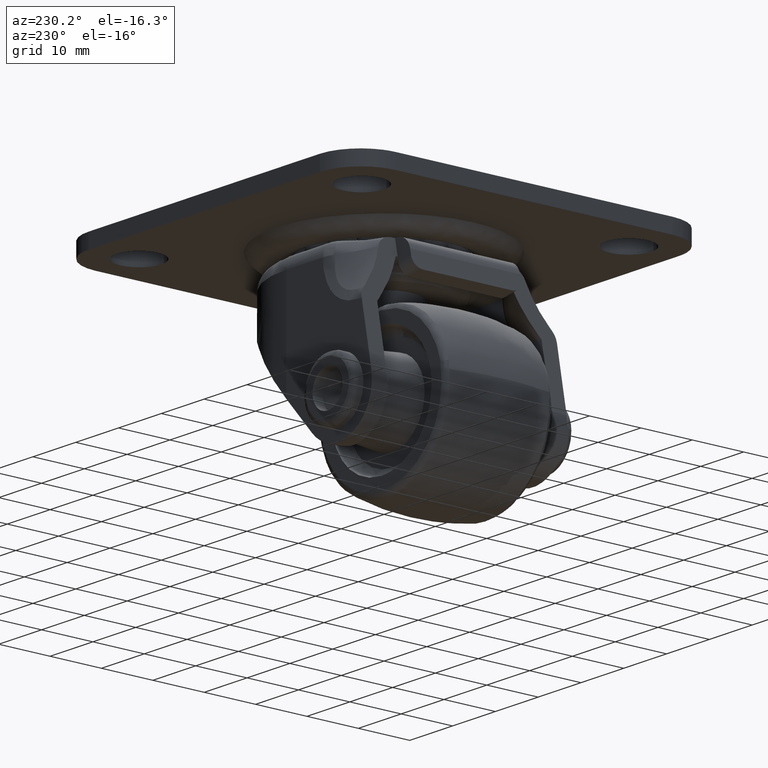
[diagram: clean part render]
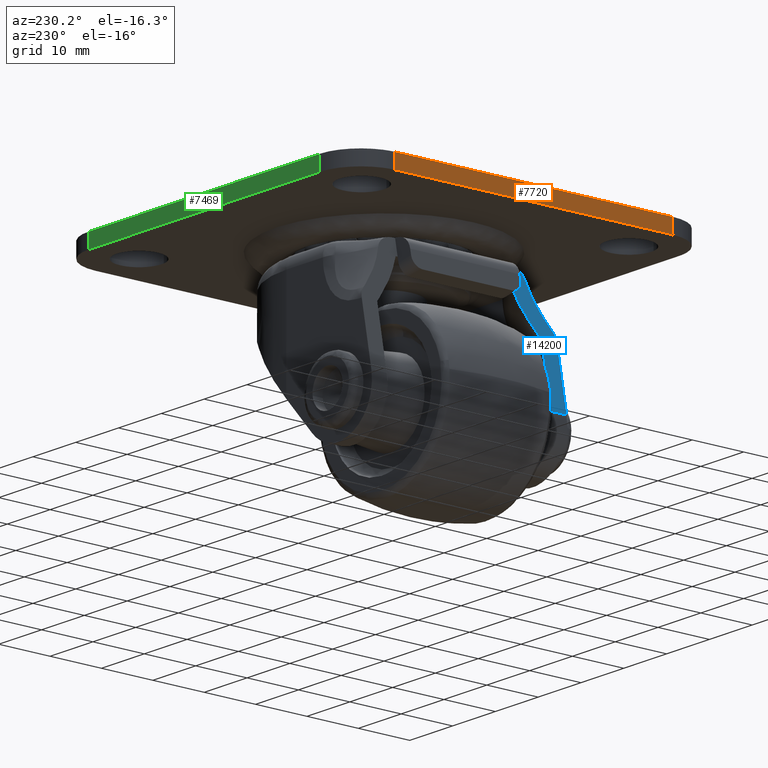
[diagram: same view with three faces highlighted in distinct colors, each labeled with its STEP entity id]
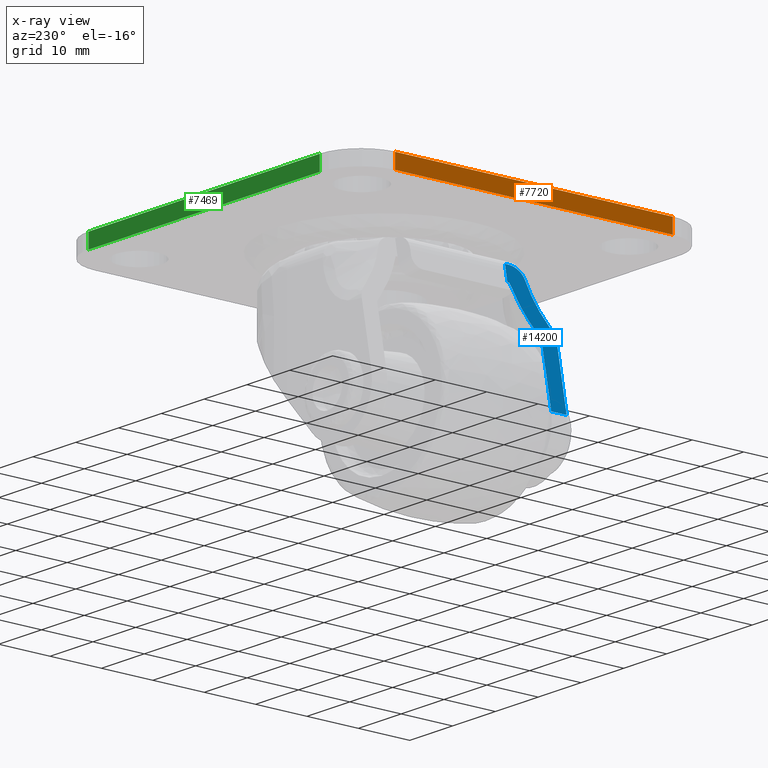
[diagram: x-ray of the same camera — body ghosted, the three highlighted faces saturated]
A machine part, auxiliary view with three faces highlighted in distinct colors.
The next image is the same camera in x-ray (body ghosted, the three faces saturated) — at least one of them is partly hidden behind the body in this view.
Their STEP definitions:

[orange] entity #7720 — the highlighted face is a freeform B-spline surface patch.
#7654=CARTESIAN_POINT('',(-23.0,-27.0,30.500000000000000));
#7655=VERTEX_POINT('',#7654);
#7669=CARTESIAN_POINT('',(-23.0,-27.0,27.699999999999999));
#7670=VERTEX_POINT('',#7669);
#7671=CARTESIAN_POINT('',(-23.0,-27.0,27.699999999999999));
#7672=CARTESIAN_POINT('',(-23.0,-27.0,30.500000000000000));
#7673=QUASI_UNIFORM_CURVE('',1,(#7671,#7672),.UNSPECIFIED.,.F.,.U.);
#7674=EDGE_CURVE('',#7670,#7655,#7673,.T.);
#7693=CARTESIAN_POINT('',(-23.0,29.697296202450641,27.560140793958841));
#7694=CARTESIAN_POINT('',(-23.0,-29.697301168046032,27.560140793958841));
#7695=CARTESIAN_POINT('',(-23.0,29.697296202450641,30.639860032161540));
#7696=CARTESIAN_POINT('',(-23.0,-29.697301168046032,30.639860032161540));
#7697=B_SPLINE_SURFACE_WITH_KNOTS('',1,1,((#7693,#7695),(#7694,#7696)),.UNSPECIFIED.,.F.,.F.,.U.,(2,2),(2,2),(0.0,59.394597370496669),(0.0,3.079719238202699),.UNSPECIFIED.);
#7698=CARTESIAN_POINT('',(-23.0,26.999995999999800,30.500000000000000));
#7699=VERTEX_POINT('',#7698);
#7700=CARTESIAN_POINT('',(-23.0,26.999995999999800,30.500000000000000));
#7701=CARTESIAN_POINT('',(-23.0,-27.0,30.500000000000000));
#7702=QUASI_UNIFORM_CURVE('',1,(#7700,#7701),.UNSPECIFIED.,.F.,.U.);
#7703=EDGE_CURVE('',#7699,#7655,#7702,.T.);
#7704=ORIENTED_EDGE('',*,*,#7703,.F.);
#7705=CARTESIAN_POINT('',(-23.0,26.999995999999800,27.699999999999999));
#7706=VERTEX_POINT('',#7705);
#7707=CARTESIAN_POINT('',(-23.0,26.999995999999800,27.699999999999999));
#7708=CARTESIAN_POINT('',(-23.0,26.999995999999800,30.500000000000000));
#7709=QUASI_UNIFORM_CURVE('',1,(#7707,#7708),.UNSPECIFIED.,.F.,.U.);
#7710=EDGE_CURVE('',#7706,#7699,#7709,.T.);
#7711=ORIENTED_EDGE('',*,*,#7710,.F.);
#7712=CARTESIAN_POINT('',(-23.0,26.999995999999800,27.699999999999999));
#7713=CARTESIAN_POINT('',(-23.0,-27.0,27.699999999999999));
#7714=QUASI_UNIFORM_CURVE('',1,(#7712,#7713),.UNSPECIFIED.,.F.,.U.);
#7715=EDGE_CURVE('',#7706,#7670,#7714,.T.);
#7716=ORIENTED_EDGE('',*,*,#7715,.T.);
#7717=ORIENTED_EDGE('',*,*,#7674,.T.);
#7718=EDGE_LOOP('',(#7704,#7711,#7716,#7717));
#7719=FACE_OUTER_BOUND('',#7718,.T.);
#7720=ADVANCED_FACE('',(#7719),#7697,.T.);

[blue] entity #14200 — the highlighted face is a freeform B-spline surface patch.
#12679=CARTESIAN_POINT('',(-5.599198789073601,-19.0,13.209993890227500));
#12680=VERTEX_POINT('',#12679);
#12681=CARTESIAN_POINT('',(-5.233937407877630,-18.326972265238901,15.103456347422950));
#12682=VERTEX_POINT('',#12681);
#12683=CARTESIAN_POINT('',(-5.599198789073601,-19.0,13.209993890227500));
#12684=CARTESIAN_POINT('',(-5.393493924420603,-19.000000027521889,14.276338317901571));
#12685=CARTESIAN_POINT('',(-5.233937407877630,-18.326972265238901,15.103456347422950));
#12693=(BOUNDED_CURVE()B_SPLINE_CURVE(2,(#12683,#12684,#12685),.UNSPECIFIED.,.F.,.U.)CURVE()GEOMETRIC_REPRESENTATION_ITEM()QUASI_UNIFORM_CURVE()RATIONAL_B_SPLINE_CURVE((1.0,0.942246625214576,1.0))REPRESENTATION_ITEM(''));
#12694=EDGE_CURVE('',#12680,#12682,#12693,.T.);
#13078=CARTESIAN_POINT('',(-3.820826882663010,-14.315447630783821,22.428818033897649));
#13079=VERTEX_POINT('',#13078);
#13094=CARTESIAN_POINT('',(-3.421282237469820,-11.327535392103400,24.500000000000000));
#13095=VERTEX_POINT('',#13094);
#13109=CARTESIAN_POINT('',(-3.820826882663026,-14.315447630783840,22.428818033897649));
#13110=CARTESIAN_POINT('',(-3.790488289067118,-14.273529737150589,22.586088938885929));
#13111=CARTESIAN_POINT('',(-3.761396715041432,-14.217210318601730,22.736895473805951));
#13112=CARTESIAN_POINT('',(-3.719547365406651,-14.112081883106720,22.953836482275150));
#13113=CARTESIAN_POINT('',(-3.705897118123691,-14.073579803880900,23.024597400599159));
#13114=CARTESIAN_POINT('',(-3.685874090268411,-14.010602685246010,23.128393896684269));
#13115=CARTESIAN_POINT('',(-3.679275228979123,-13.988738596904570,23.162601444360380));
#13116=CARTESIAN_POINT('',(-3.666230105524839,-13.943248090148471,23.230225487803722));
#13117=CARTESIAN_POINT('',(-3.659782247256113,-13.919607889861361,23.263650257543059));
#13118=CARTESIAN_POINT('',(-3.628254717942681,-13.798255184725740,23.427084434262351));
#13119=CARTESIAN_POINT('',(-3.605020206433888,-13.690232893174329,23.547528799634691));
#13120=CARTESIAN_POINT('',(-3.572943202054065,-13.512925957898799,23.713811376056061));
#13121=CARTESIAN_POINT('',(-3.562715956239384,-13.451263594756091,23.766827947167979));
#13122=CARTESIAN_POINT('',(-3.543186258612161,-13.322848401325130,23.868067090316490));
#13123=CARTESIAN_POINT('',(-3.533886825353996,-13.256049805128390,23.916274014601449));
#13124=CARTESIAN_POINT('',(-3.507822966995212,-13.051684535471900,24.051385307042029));
#13125=CARTESIAN_POINT('',(-3.492699638193363,-12.909051248435690,24.129782468056860));
#13126=CARTESIAN_POINT('',(-3.473169512356691,-12.686152060516680,24.231023830981581));
#13127=CARTESIAN_POINT('',(-3.467188171086861,-12.610352591960829,24.262030243707208));
#13128=CARTESIAN_POINT('',(-3.456277384147406,-12.455769794244340,24.318590193682400));
#13129=CARTESIAN_POINT('',(-3.451378994650415,-12.377374493491191,24.343982740200481));
#13130=CARTESIAN_POINT('',(-3.438414673069302,-12.141118707108330,24.411187918356671));
#13131=CARTESIAN_POINT('',(-3.432007405839415,-11.981335119491099,24.444402269989691));
#13132=CARTESIAN_POINT('',(-3.425580646371846,-11.738412762834280,24.477717666578901));
#13133=CARTESIAN_POINT('',(-3.423971681151103,-11.656894832443109,24.486058310833261));
#13134=CARTESIAN_POINT('',(-3.421821330618061,-11.492770324798361,24.497205418668180));
#13135=CARTESIAN_POINT('',(-3.421282237469826,-11.410104224111970,24.500000000000011));
#13136=CARTESIAN_POINT('',(-3.421282237469820,-11.327535392103400,24.500000000000000));
#13137=B_SPLINE_CURVE_WITH_KNOTS('',3,(#13109,#13110,#13111,#13112,#13113,#13114,#13115,#13116,#13117,#13118,#13119,#13120,#13121,#13122,#13123,#13124,#13125,#13126,#13127,#13128,#13129,#13130,#13131,#13132,#13133,#13134,#13135,#13136),.UNSPECIFIED.,.F.,.U.,(4,2,2,2,2,2,2,2,2,2,2,2,2,4),(0.0,0.124999999999996,0.187499999999994,0.218749999999994,0.249999999999994,0.374999999999995,0.437499999999995,0.499999999999995,0.624999999999996,0.687499999999997,0.749999999999997,0.874999999999999,0.937500000000000,1.0),.UNSPECIFIED.);
#13138=EDGE_CURVE('',#13079,#13095,#13137,.T.);
#13188=CARTESIAN_POINT('',(-4.000001999999955,-10.680983999999979,21.500000000000000));
#13189=VERTEX_POINT('',#13188);
#13195=CARTESIAN_POINT('',(-3.421282237469820,-10.680983999999940,24.500000000000000));
#13196=VERTEX_POINT('',#13195);
#13197=CARTESIAN_POINT('',(-3.421282237469820,-10.680983999999940,24.500000000000000));
#13198=CARTESIAN_POINT('',(-4.000001999999955,-10.680983999999979,21.500000000000000));
#13199=QUASI_UNIFORM_CURVE('',1,(#13197,#13198),.UNSPECIFIED.,.F.,.U.);
#13200=EDGE_CURVE('',#13196,#13189,#13199,.T.);
#13358=CARTESIAN_POINT('',(-5.438582566614231,-15.322502276119200,14.042605282780800));
#13359=VERTEX_POINT('',#13358);
#13360=CARTESIAN_POINT('',(-5.599198789073601,-16.0,13.209993890227500));
#13361=VERTEX_POINT('',#13360);
#13362=CARTESIAN_POINT('',(-5.438582566614231,-15.322502276119200,14.042605282780800));
#13363=CARTESIAN_POINT('',(-5.599198789073601,-16.0,13.209993890227500));
#13364=QUASI_UNIFORM_CURVE('',1,(#13362,#13363),.UNSPECIFIED.,.F.,.U.);
#13365=EDGE_CURVE('',#13359,#13361,#13364,.T.);
#13396=CARTESIAN_POINT('',(-4.000001999999955,-11.061900518918639,21.500000000000000));
#13397=VERTEX_POINT('',#13396);
#13398=CARTESIAN_POINT('',(-4.000001999999955,-11.061900518918639,21.500000000000000));
#13399=CARTESIAN_POINT('',(-4.751856839292190,-12.425814070739033,17.602492667581753));
#13400=CARTESIAN_POINT('',(-5.438582566614205,-15.322502276119209,14.042605282780791));
#13408=(BOUNDED_CURVE()B_SPLINE_CURVE(2,(#13398,#13399,#13400),.UNSPECIFIED.,.F.,.U.)CURVE()GEOMETRIC_REPRESENTATION_ITEM()QUASI_UNIFORM_CURVE()RATIONAL_B_SPLINE_CURVE((1.0,0.972664890751785,1.0))REPRESENTATION_ITEM(''));
#13409=EDGE_CURVE('',#13397,#13359,#13408,.T.);
#13612=CARTESIAN_POINT('',(-4.000001999999955,-10.680983999999979,21.500000000000000));
#13613=CARTESIAN_POINT('',(-4.000001999999955,-11.061900518918639,21.500000000000000));
#13614=QUASI_UNIFORM_CURVE('',1,(#13612,#13613),.UNSPECIFIED.,.F.,.U.);
#13615=EDGE_CURVE('',#13189,#13397,#13614,.T.);
#13703=CARTESIAN_POINT('',(-5.140743934205630,-17.933871460559601,15.586557909038600));
#13704=VERTEX_POINT('',#13703);
#13705=CARTESIAN_POINT('',(-5.140743934205630,-17.933871460559601,15.586557909038600));
#13706=CARTESIAN_POINT('',(-5.233937407877630,-18.326972265238901,15.103456347422950));
#13707=QUASI_UNIFORM_CURVE('',1,(#13705,#13706),.UNSPECIFIED.,.F.,.U.);
#13708=EDGE_CURVE('',#13704,#12682,#13707,.T.);
#13736=CARTESIAN_POINT('',(-3.820826882663019,-14.315447630783821,22.428818033897649));
#13737=CARTESIAN_POINT('',(-4.508003079447366,-15.264897664881502,18.866595480204076));
#13738=CARTESIAN_POINT('',(-5.140743934205634,-17.933871460559612,15.586557909038619));
#13746=(BOUNDED_CURVE()B_SPLINE_CURVE(2,(#13736,#13737,#13738),.UNSPECIFIED.,.F.,.U.)CURVE()GEOMETRIC_REPRESENTATION_ITEM()QUASI_UNIFORM_CURVE()RATIONAL_B_SPLINE_CURVE((1.0,0.961460774264708,1.0))REPRESENTATION_ITEM(''));
#13747=EDGE_CURVE('',#13079,#13704,#13746,.T.);
#14022=CARTESIAN_POINT('',(-7.855179000000001,-16.0,1.515316999999810));
#14023=VERTEX_POINT('',#14022);
#14040=CARTESIAN_POINT('',(-7.855179000000001,-19.0,1.515316999999810));
#14041=VERTEX_POINT('',#14040);
#14057=CARTESIAN_POINT('',(-7.855179000000001,-16.0,1.515316999999810));
#14058=CARTESIAN_POINT('',(-7.855179000000001,-19.0,1.515316999999810));
#14059=QUASI_UNIFORM_CURVE('',1,(#14057,#14058),.UNSPECIFIED.,.F.,.U.);
#14060=EDGE_CURVE('',#14023,#14041,#14059,.T.);
#14169=CARTESIAN_POINT('',(-8.076652134694655,-19.415534833076130,0.367232128698582));
#14170=CARTESIAN_POINT('',(-3.199808983848810,-19.415534833076130,25.648085487798468));
#14171=CARTESIAN_POINT('',(-8.076652134694655,-10.265448943790410,0.367232128698582));
#14172=CARTESIAN_POINT('',(-3.199808983848810,-10.265448943790410,25.648085487798468));
#14173=B_SPLINE_SURFACE_WITH_KNOTS('',1,1,((#14169,#14171),(#14170,#14172)),.UNSPECIFIED.,.F.,.F.,.U.,(2,2),(2,2),(0.0,25.746944395059082),(0.0,9.150085889285727),.UNSPECIFIED.);
#14174=CARTESIAN_POINT('',(-5.599198789073601,-19.0,13.209993890227500));
#14175=CARTESIAN_POINT('',(-7.855179000000001,-19.0,1.515316999999810));
#14176=QUASI_UNIFORM_CURVE('',1,(#14174,#14175),.UNSPECIFIED.,.F.,.U.);
#14177=EDGE_CURVE('',#12680,#14041,#14176,.T.);
#14178=ORIENTED_EDGE('',*,*,#14177,.F.);
#14179=ORIENTED_EDGE('',*,*,#12694,.T.);
#14180=ORIENTED_EDGE('',*,*,#13708,.F.);
#14181=ORIENTED_EDGE('',*,*,#13747,.F.);
#14182=ORIENTED_EDGE('',*,*,#13138,.T.);
#14183=CARTESIAN_POINT('',(-3.421282237469820,-10.680983999999940,24.500000000000000));
#14184=CARTESIAN_POINT('',(-3.421282237469820,-11.327535392103400,24.500000000000000));
#14185=QUASI_UNIFORM_CURVE('',1,(#14183,#14184),.UNSPECIFIED.,.F.,.U.);
#14186=EDGE_CURVE('',#13196,#13095,#14185,.T.);
#14187=ORIENTED_EDGE('',*,*,#14186,.F.);
#14188=ORIENTED_EDGE('',*,*,#13200,.T.);
#14189=ORIENTED_EDGE('',*,*,#13615,.T.);
#14190=ORIENTED_EDGE('',*,*,#13409,.T.);
#14191=ORIENTED_EDGE('',*,*,#13365,.T.);
#14192=CARTESIAN_POINT('',(-5.599198789073601,-16.0,13.209993890227500));
#14193=CARTESIAN_POINT('',(-7.855179000000001,-16.0,1.515316999999810));
#14194=QUASI_UNIFORM_CURVE('',1,(#14192,#14193),.UNSPECIFIED.,.F.,.U.);
#14195=EDGE_CURVE('',#13361,#14023,#14194,.T.);
#14196=ORIENTED_EDGE('',*,*,#14195,.T.);
#14197=ORIENTED_EDGE('',*,*,#14060,.T.);
#14198=EDGE_LOOP('',(#14178,#14179,#14180,#14181,#14182,#14187,#14188,#14189,#14190,#14191,#14196,#14197));
#14199=FACE_OUTER_BOUND('',#14198,.T.);
#14200=ADVANCED_FACE('',(#14199),#14173,.T.);

[green] entity #7469 — the highlighted face is a freeform B-spline surface patch.
#7434=CARTESIAN_POINT('',(-17.697299888363190,34.999995999999797,27.560140793958841));
#7435=CARTESIAN_POINT('',(-17.697299888363190,34.999995999999797,30.639860032161540));
#7436=CARTESIAN_POINT('',(41.697301197129697,34.999995999999797,27.560140793958841));
#7437=CARTESIAN_POINT('',(41.697301197129697,34.999995999999797,30.639860032161540));
#7438=B_SPLINE_SURFACE_WITH_KNOTS('',1,1,((#7434,#7436),(#7435,#7437)),.UNSPECIFIED.,.F.,.F.,.U.,(2,2),(2,2),(0.0,3.079719238202699),(0.0,59.394601085492901),.UNSPECIFIED.);
#7439=CARTESIAN_POINT('',(38.999999860373649,34.999995999999797,30.500000000000000));
#7440=VERTEX_POINT('',#7439);
#7441=CARTESIAN_POINT('',(-15.0,34.999995999999797,30.500000000000000));
#7442=VERTEX_POINT('',#7441);
#7443=CARTESIAN_POINT('',(38.999999860373649,34.999995999999797,30.500000000000000));
#7444=CARTESIAN_POINT('',(-15.0,34.999995999999797,30.500000000000000));
#7445=QUASI_UNIFORM_CURVE('',1,(#7443,#7444),.UNSPECIFIED.,.F.,.U.);
#7446=EDGE_CURVE('',#7440,#7442,#7445,.T.);
#7447=ORIENTED_EDGE('',*,*,#7446,.F.);
#7448=CARTESIAN_POINT('',(38.999999860373649,34.999995999999797,27.699999999999999));
#7449=VERTEX_POINT('',#7448);
#7450=CARTESIAN_POINT('',(38.999999860373649,34.999995999999797,27.699999999999999));
#7451=CARTESIAN_POINT('',(38.999999860373649,34.999995999999797,30.500000000000000));
#7452=QUASI_UNIFORM_CURVE('',1,(#7450,#7451),.UNSPECIFIED.,.F.,.U.);
#7453=EDGE_CURVE('',#7449,#7440,#7452,.T.);
#7454=ORIENTED_EDGE('',*,*,#7453,.F.);
#7455=CARTESIAN_POINT('',(-15.0,34.999995999999797,27.699999999999999));
#7456=VERTEX_POINT('',#7455);
#7457=CARTESIAN_POINT('',(38.999999860373649,34.999995999999797,27.699999999999999));
#7458=CARTESIAN_POINT('',(-15.0,34.999995999999797,27.699999999999999));
#7459=QUASI_UNIFORM_CURVE('',1,(#7457,#7458),.UNSPECIFIED.,.F.,.U.);
#7460=EDGE_CURVE('',#7449,#7456,#7459,.T.);
#7461=ORIENTED_EDGE('',*,*,#7460,.T.);
#7462=CARTESIAN_POINT('',(-15.0,34.999995999999797,27.699999999999999));
#7463=CARTESIAN_POINT('',(-15.0,34.999995999999797,30.500000000000000));
#7464=QUASI_UNIFORM_CURVE('',1,(#7462,#7463),.UNSPECIFIED.,.F.,.U.);
#7465=EDGE_CURVE('',#7456,#7442,#7464,.T.);
#7466=ORIENTED_EDGE('',*,*,#7465,.T.);
#7467=EDGE_LOOP('',(#7447,#7454,#7461,#7466));
#7468=FACE_OUTER_BOUND('',#7467,.T.);
#7469=ADVANCED_FACE('',(#7468),#7438,.T.);